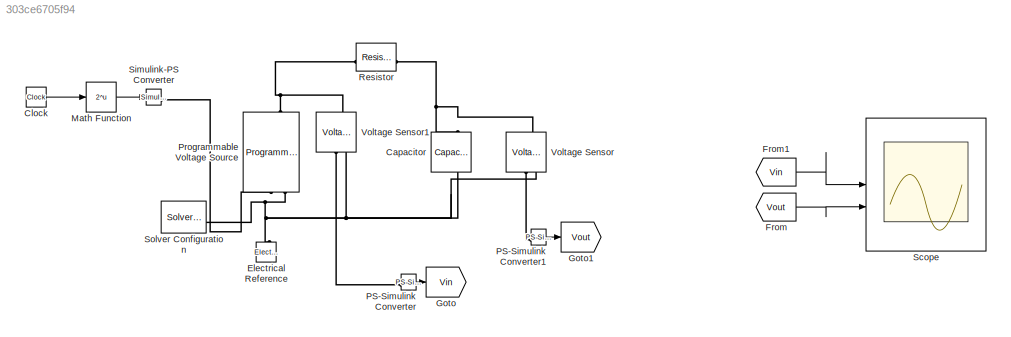
MODEL slx_303ce6705f94
KIND model
CONFIG AbsTol = auto
CONFIG EnableMultiTasking = off
CONFIG FixedStep = auto
CONFIG MaxStep = auto
CONFIG MinStep = auto
CONFIG RelTol = 1e-3
CONFIG SampleTimeConstraint = Unconstrained
CONFIG SolverName = VariableStepAuto
CONFIG StartTime = 0.0
CONFIG StopTime = 10
BLOCK [Reference] Capacitor  REF=fl_lib/Electrical/Electrical Elements/Capacitor
  NameLocation = left
  SourceBlock = fl_lib/Electrical/Electrical Elements/Capacitor
  SourceType = Capacitor
BLOCK [Clock] Clock
BLOCK [Reference] Electrical Reference  REF=fl_lib/Electrical/Electrical Elements/Electrical Reference
  NameLocation = right
  SourceBlock = fl_lib/Electrical/Electrical Elements/Electrical Reference
  SourceType = Electrical Reference
BLOCK [From] From
  GotoTag = Vout
BLOCK [From] From1
  GotoTag = Vin
BLOCK [Goto] Goto
  GotoTag = Vin
BLOCK [Goto] Goto1
  GotoTag = Vout
BLOCK [Math] Math Function
  Operator = 2^u
BLOCK [Reference] PS-Simulink Converter  REF=nesl_utility/PS-Simulink
Converter
  SourceBlock = nesl_utility/PS-Simulink\nConverter
  SourceType = PS-Simulink\nConverter
BLOCK [Reference] PS-Simulink Converter1  REF=nesl_utility/PS-Simulink
Converter
  SourceBlock = nesl_utility/PS-Simulink\nConverter
  SourceType = PS-Simulink\nConverter
BLOCK [Reference] Programmable Voltage Source  REF=ee_lib/Sources/Programmable Voltage
Source
  NameLocation = right
  SourceBlock = ee_lib/Sources/Programmable Voltage\nSource
  SourceType = Programmable Voltage\nSource
BLOCK [Reference] Resistor  REF=fl_lib/Electrical/Electrical Elements/Resistor
  SourceBlock = fl_lib/Electrical/Electrical Elements/Resistor
  SourceType = Resistor
BLOCK [Scope] Scope
  ActiveDisplayYMaximum = 12.499999999725889
  ActiveDisplayYMinimum = -12.499999997983213
  Floating = off
  GraphicalSettings = {"AxesScalingProperties":{"AlignXAxis":"Center","AlignYAxis":"Center","AutoScaleXAxisLimits":false,"AxesScaling":"Manual","AxesScalingNumUpdates":10,"ExpandOnly":true,"ScaleAxesLimitsAtStop":false,"XAxisDataRange":100,"YAxisDataRange":80},"DisplayProperties":{"ColorOrder":["auto","auto","auto","auto","auto","auto","auto","auto","auto","auto","auto","auto","auto","auto","auto","auto","auto","auto",...<+2179ch>
  LayoutDimensionsString = [1,1]
  MultipleDisplayCache = [{"MaxYLimMag":12.499999999725889,"MaxYLimReal":12.499999999725889,"MinYLimMag":0,"MinYLimReal":-12.499999997983213,"PlotAsMagnitudePhase":false,"ShowGrid":true,"ShowLegend":false,"Title":"%<SignalLabel>","YLabel":""}]
  NumInputPorts = 2
  ScopeFrameLocation = window
  Visible = on
  WasSavedAsWebScope = on
  WindowPosition = [488.000000,222.000000,560.000000,420.000000,]
BLOCK [Reference] Simulink-PS Converter  REF=nesl_utility/Simulink-PS
Converter
  SourceBlock = nesl_utility/Simulink-PS\nConverter
  SourceType = Simulink-PS\nConverter
BLOCK [Reference] Solver Configuration  REF=nesl_utility/Solver
Configuration
  SourceBlock = nesl_utility/Solver\nConfiguration
  SourceType = Solver\nConfiguration
BLOCK [Reference] Voltage Sensor  REF=fl_lib/Electrical/Electrical Sensors/Voltage Sensor
  NameLocation = right
  SourceBlock = fl_lib/Electrical/Electrical Sensors/Voltage Sensor
  SourceType = Voltage Sensor
BLOCK [Reference] Voltage Sensor1  REF=fl_lib/Electrical/Electrical Sensors/Voltage Sensor
  NameLocation = right
  SourceBlock = fl_lib/Electrical/Electrical Sensors/Voltage Sensor
  SourceType = Voltage Sensor
LINE Clock:1 -> Math Function:1
LINE From1:1 -> Scope:1
LINE From:1 -> Scope:2
LINE Math Function:1 -> Simulink-PS Converter:1
LINE PS-Simulink Converter1:1 -> Goto1:1
LINE PS-Simulink Converter:1 -> Goto:1
PNET net1: Capacitor:LConn1 -- Resistor:RConn1 -- Voltage Sensor:LConn1
PNET net2: Capacitor:RConn1 -- Electrical Reference:LConn1 -- Programmable Voltage Source:RConn2 -- Solver Configuration:RConn1 -- Voltage Sensor1:RConn2 -- Voltage Sensor:RConn2
PLINE PS-Simulink Converter1:LConn1 -- Voltage Sensor:RConn1
PLINE PS-Simulink Converter:LConn1 -- Voltage Sensor1:RConn1
PNET net3: Programmable Voltage Source:LConn1 -- Resistor:LConn1 -- Voltage Sensor1:LConn1
PLINE Programmable Voltage Source:RConn1 -- Simulink-PS Converter:RConn1
note: PNET lines group multi-terminal physical nets as a canonical sorted terminal list (undirected conserving connections); 2-terminal nets keep the pairwise PLINE form
